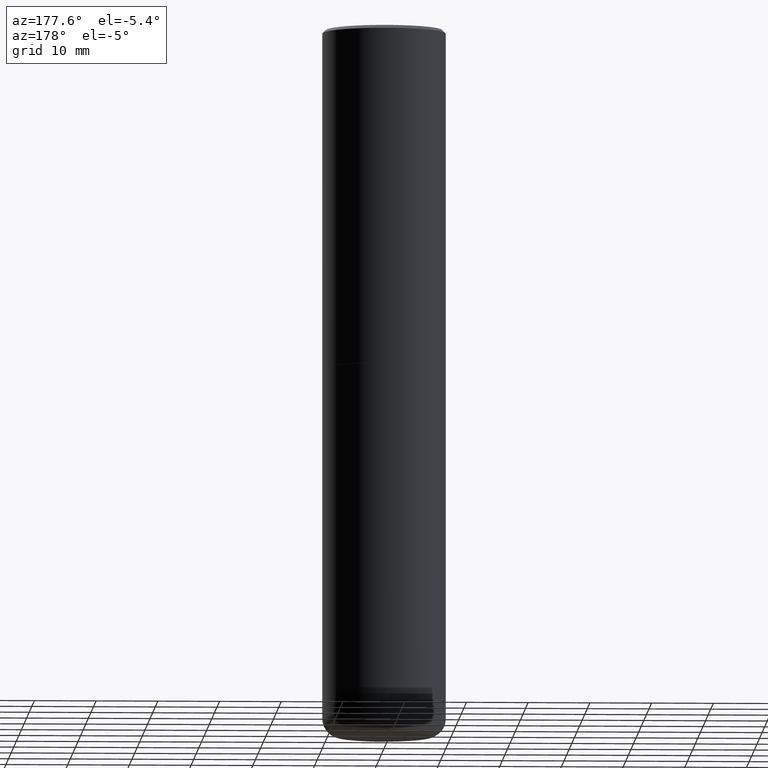
[diagram: clean part render]
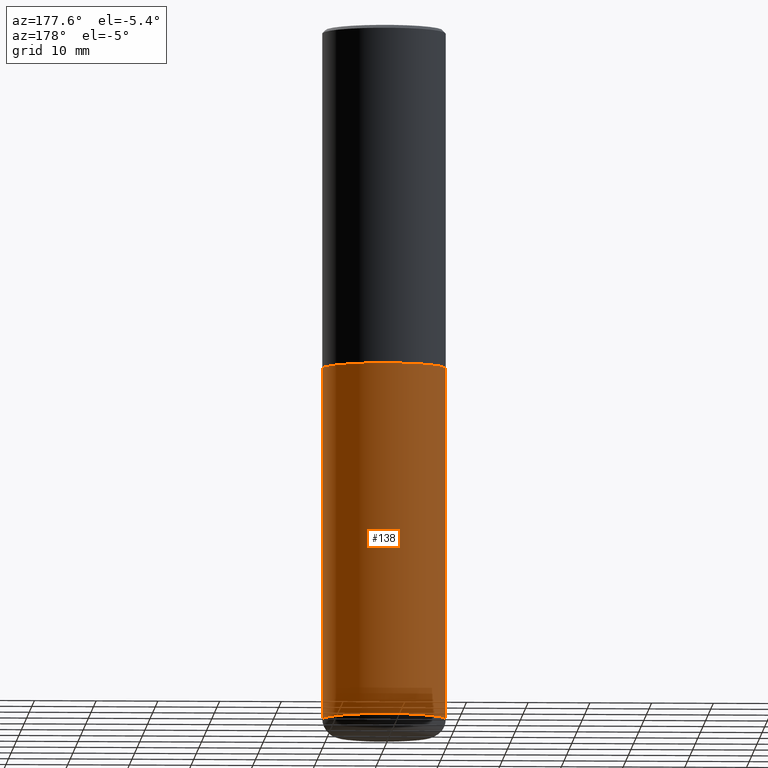
[diagram: same view with one face highlighted and labeled with its STEP entity id]
A machine part, auxiliary view. The second image highlights one B-rep face of the part: STEP entity #138.
In plain terms, the highlighted cylindrical surface (partial cylindrical patch) has radius 10 mm, axis along (-0, 0, 1).
Its self-contained STEP definition (entity closure, byte-faithful):
#8 = ORIENTED_EDGE ( 'NONE', *, *, #361, .F. ) ;
#11 = EDGE_LOOP ( 'NONE', ( #85, #194, #8, #231 ) ) ;
#18 = DIRECTION ( 'NONE',  ( -2.445468806185136877E-29, 3.491481338843145188E-15, 1.000000000000000000 ) ) ;
#19 = DIRECTION ( 'NONE',  ( -2.445468806185136597E-29, 3.491481338843145583E-15, 1.000000000000000000 ) ) ;
#44 = DIRECTION ( 'NONE',  ( 1.000000000000000000, -6.982962677686265133E-15, 0.000000000000000000 ) ) ;
#59 = CIRCLE ( 'NONE', #247, 0.3936999999999999389 ) ;
#63 = EDGE_CURVE ( 'NONE', #298, #152, #59, .T. ) ;
#69 = DIRECTION ( 'NONE',  ( 1.000000000000000000, -6.982962677686266711E-15, 4.876176775795935793E-29 ) ) ;
#85 = ORIENTED_EDGE ( 'NONE', *, *, #63, .T. ) ;
#114 = CARTESIAN_POINT ( 'NONE',  ( 5.295418152913293224E-29, -7.560453691130945845E-15, -2.165399999999999547 ) ) ;
#130 = LINE ( 'NONE', #275, #141 ) ;
#131 = EDGE_CURVE ( 'NONE', #152, #272, #130, .T. ) ;
#138 = ADVANCED_FACE ( 'NONE', ( #398 ), #343, .T. ) ;
#139 = CARTESIAN_POINT ( 'NONE',  ( 0.000000000000000000, 0.000000000000000000, 0.000000000000000000 ) ) ;
#141 = VECTOR ( 'NONE', #18, 39.37007874015748143 ) ;
#147 = DIRECTION ( 'NONE',  ( -2.445468806185136597E-29, 3.491481338843145583E-15, 1.000000000000000000 ) ) ;
#149 = LINE ( 'NONE', #286, #322 ) ;
#152 = VERTEX_POINT ( 'NONE', #205 ) ;
#186 = DIRECTION ( 'NONE',  ( 1.000000000000000000, -6.982962677686265133E-15, 0.000000000000000000 ) ) ;
#187 = AXIS2_PLACEMENT_3D ( 'NONE', #114, #147, #186 ) ;
#194 = ORIENTED_EDGE ( 'NONE', *, *, #131, .T. ) ;
#205 = CARTESIAN_POINT ( 'NONE',  ( -0.3936999999999998279, -1.259828021294133576E-14, -4.409499999999999531 ) ) ;
#231 = ORIENTED_EDGE ( 'NONE', *, *, #356, .F. ) ;
#247 = AXIS2_PLACEMENT_3D ( 'NONE', #368, #19, #44 ) ;
#272 = VERTEX_POINT ( 'NONE', #282 ) ;
#275 = CARTESIAN_POINT ( 'NONE',  ( -0.3936999999999999389, 2.797406750687513998E-15, -1.936584745033356455E-29 ) ) ;
#282 = CARTESIAN_POINT ( 'NONE',  ( -0.3937000000000000499, -8.680663576692383017E-15, -2.165399999999999547 ) ) ;
#286 = CARTESIAN_POINT ( 'NONE',  ( 0.3936999999999999389, -2.749192406205082822E-15, 1.919750796630859611E-29 ) ) ;
#298 = VERTEX_POINT ( 'NONE', #377 ) ;
#322 = VECTOR ( 'NONE', #415, 39.37007874015748143 ) ;
#343 = CYLINDRICAL_SURFACE ( 'NONE', #378, 0.3936999999999999389 ) ;
#356 = EDGE_CURVE ( 'NONE', #298, #363, #149, .T. ) ;
#361 = EDGE_CURVE ( 'NONE', #363, #272, #395, .T. ) ;
#363 = VERTEX_POINT ( 'NONE', #381 ) ;
#366 = DIRECTION ( 'NONE',  ( -2.445468806185136597E-29, 3.491481338843145583E-15, 1.000000000000000000 ) ) ;
#368 = CARTESIAN_POINT ( 'NONE',  ( 1.078329470087335798E-28, -1.539568696362884818E-14, -4.409499999999999531 ) ) ;
#377 = CARTESIAN_POINT ( 'NONE',  ( 0.3936999999999998279, -1.814487936983393140E-14, -4.409499999999999531 ) ) ;
#378 = AXIS2_PLACEMENT_3D ( 'NONE', #139, #366, #69 ) ;
#381 = CARTESIAN_POINT ( 'NONE',  ( 0.3937000000000000499, -1.030964609733602906E-14, -2.165399999999999547 ) ) ;
#395 = CIRCLE ( 'NONE', #187, 0.3937000000000000499 ) ;
#398 = FACE_OUTER_BOUND ( 'NONE', #11, .T. ) ;
#415 = DIRECTION ( 'NONE',  ( -2.445468806185136877E-29, 3.491481338843145188E-15, 1.000000000000000000 ) ) ;